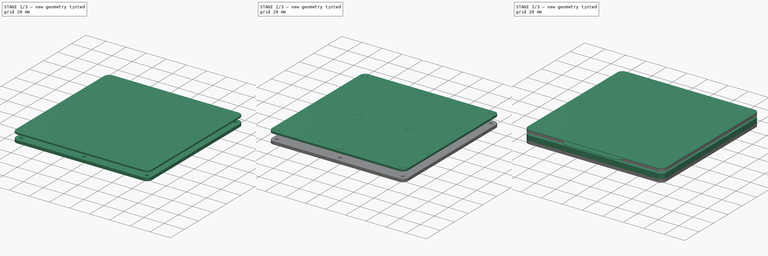
[diagram: build sequence overview — one tinted view per stage of 3, left to right]
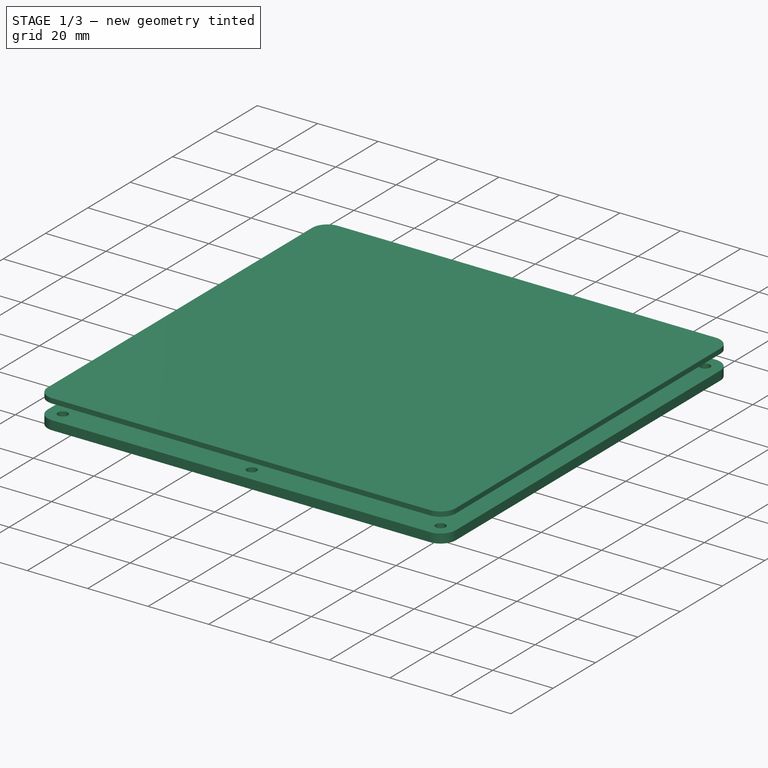
[diagram: stage 1 of 3 — iso view after this stage's code; geometry added in this stage tinted green]
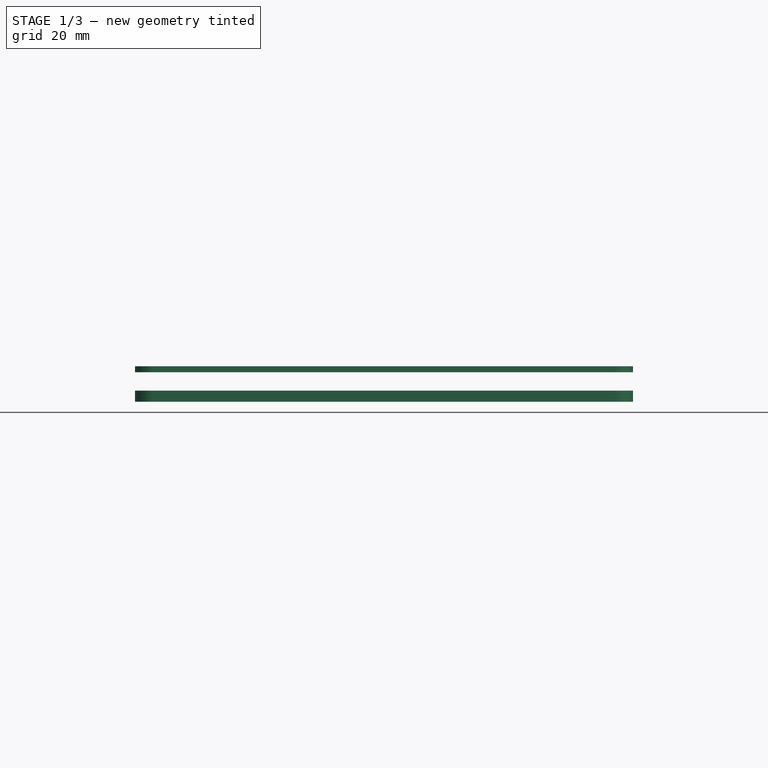
[diagram: stage 1 of 3 — front view after this stage's code; geometry added in this stage tinted green]
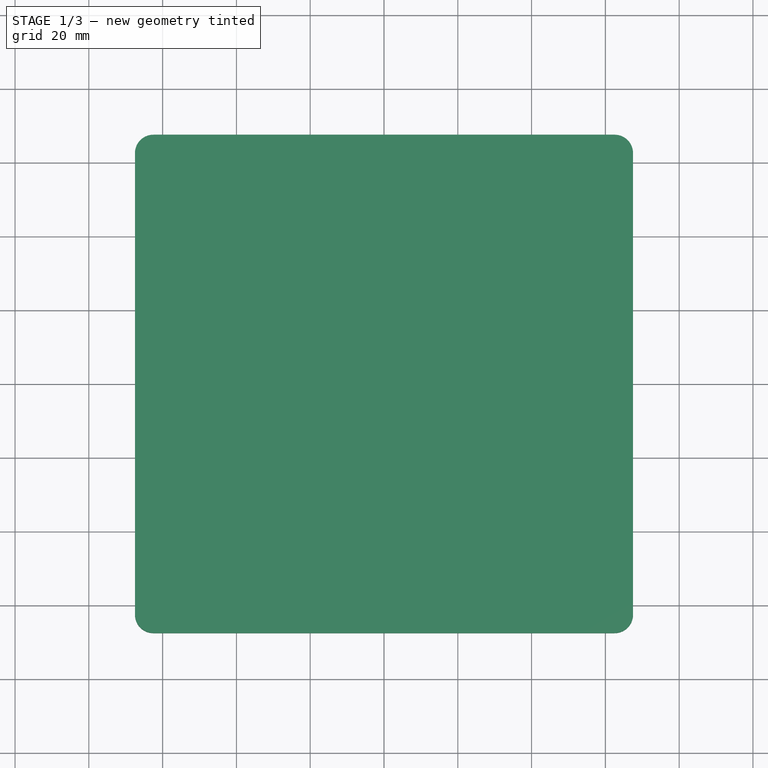
[diagram: stage 1 of 3 — top view after this stage's code; geometry added in this stage tinted green]
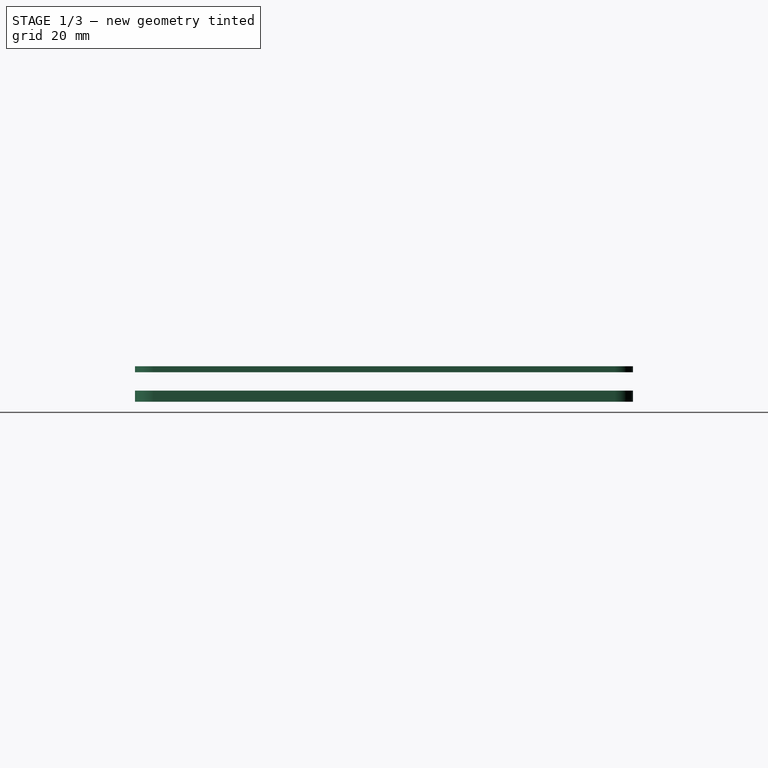
[diagram: stage 1 of 3 — right view after this stage's code; geometry added in this stage tinted green]
FCSTD DOCUMENT  (FreeCAD 0.18.4R)
Label: heat-bed
License: All rights reserved
LicenseURL: http://en.wikipedia.org/wiki/All_rights_reserved
objects: Sketcher::SketchObject×8, PartDesign::Pad×6, PartDesign::Body×6, PartDesign::ShapeBinder×4, PartDesign::Line×2, App::Part×2, PartDesign::Hole×2
note: 36 computed .brp shape members not serialized (recipe doc carries the construction recipe); baked Part::Feature solids carry a one-line shape summary decoded from their .brp

FEATURE [Sketcher::SketchObject] Sketch
  MapMode = 5
  Support = -> [XY_Plane001]
  sketch-geometry (14):
    g0: LineSegment StartX=-62.5 StartY=67.5 StartZ=0 EndX=62.5 EndY=67.5 EndZ=0
    g1: LineSegment StartX=67.5 StartY=62.5 StartZ=0 EndX=67.5 EndY=-62.5 EndZ=0
    g2: LineSegment StartX=62.5 StartY=-67.5 StartZ=0 EndX=-62.5 EndY=-67.5 EndZ=0
    g3: LineSegment StartX=-67.5 StartY=-62.5 StartZ=0 EndX=-67.5 EndY=62.5 EndZ=0
    g4: ArcOfCircle CenterX=-62.5 CenterY=62.5 CenterZ=0 NormalX=0 NormalY=0 NormalZ=1 AngleXU=0 Radius=5 StartAngle=1.5708 EndAngle=3.14159
    g5: ArcOfCircle CenterX=62.5 CenterY=62.5 CenterZ=0 NormalX=0 NormalY=0 NormalZ=1 AngleXU=0 Radius=5 StartAngle=2e-16 EndAngle=1.5708
    g6: ArcOfCircle CenterX=62.5 CenterY=-62.5 CenterZ=0 NormalX=0 NormalY=0 NormalZ=1 AngleXU=0 Radius=5 StartAngle=4.71239 EndAngle=6.28319
    g7: ArcOfCircle CenterX=-62.5 CenterY=-62.5 CenterZ=0 NormalX=0 NormalY=0 NormalZ=1 AngleXU=0 Radius=5 StartAngle=3.14159 EndAngle=4.71239
    g8: LineSegment [constr] StartX=-67.5 StartY=67.5 StartZ=0 EndX=67.5 EndY=67.5 EndZ=0
    g9: LineSegment [constr] StartX=67.5 StartY=67.5 StartZ=0 EndX=67.5 EndY=-67.5 EndZ=0
    g10: LineSegment [constr] StartX=67.5 StartY=-67.5 StartZ=0 EndX=-67.5 EndY=-67.5 EndZ=0
    g11: LineSegment [constr] StartX=-67.5 StartY=-67.5 StartZ=0 EndX=-67.5 EndY=67.5 EndZ=0
    g12: GeomPoint X=62.5 Y=0 Z=0
    g13: GeomPoint X=67.5 Y=0 Z=0
  constraints (35):
    c: Horizontal(g0)
    c: Horizontal(g2)
    c: Vertical(g1)
    c: Vertical(g3)
    c: Equal(g0,g3)
    c: Tangent(g3,g4) = 1.5708
    c: Tangent(g0,g4) = 1.5708
    c: Tangent(g0,g5) = 1.5708
    c: Tangent(g1,g5) = 1.5708
    c: Tangent(g1,g6) = 1.5708
    c: Tangent(g2,g6) = 1.5708
    c: Tangent(g2,g7) = 1.5708
    c: Tangent(g3,g7) = 1.5708
    c: Coincident(g8,g9)
    c: Coincident(g9,g10)
    c: Coincident(g10,g11)
    c: Coincident(g11,g8)
    c: Horizontal(g8)
    c: Horizontal(g10)
    c: Vertical(g9)
    c: Vertical(g11)
    c: Symmetric(g8,g9,g-1)
    c: PointOnObject(g3,g11)
    c: PointOnObject(g1,g9)
    c: PointOnObject(g0,g8)
    c: PointOnObject(g2,g10)
    c: Equal(g4,g5)
    c: Equal(g5,g6)
    c: Equal(g6,g7)
    c: Radius(g4) = 5
    c: DistanceY(g11,g11) = 135
    c: PointOnObject(g12,g-1)
    c: PointOnObject(g13,g-1)
    c: PointOnObject(g13,g1)
    c: DistanceX(g12,g13) = 5
FEATURE [PartDesign::Pad] Pad
  Length = 3
  Length2 = 100
  Profile = -> Sketch
  Type = 0
FEATURE [PartDesign::Body] Body001  label="Insulation"
  Group = -> [Sketch001,Pad001]
  Origin = -> Origin002
  Tip = -> Pad001
FEATURE [Sketcher::SketchObject] Sketch002
  MapMode = 5
  Placement = pos=(0,0,8) rot=(0,0,1;0rad)
  sketch-geometry (8):
    g0: LineSegment StartX=-62.5 StartY=67.5 StartZ=0 EndX=62.5 EndY=67.5 EndZ=0
    g1: LineSegment StartX=67.5 StartY=62.5 StartZ=0 EndX=67.5 EndY=-62.5 EndZ=0
    g2: LineSegment StartX=62.5 StartY=-67.5 StartZ=0 EndX=-62.5 EndY=-67.5 EndZ=0
    g3: LineSegment StartX=-67.5 StartY=-62.5 StartZ=0 EndX=-67.5 EndY=62.5 EndZ=0
    g4: ArcOfCircle CenterX=-62.5 CenterY=62.5 CenterZ=0 NormalX=0 NormalY=0 NormalZ=1 AngleXU=0 Radius=5 StartAngle=1.5708 EndAngle=3.14159
    g5: ArcOfCircle CenterX=62.5 CenterY=62.5 CenterZ=0 NormalX=0 NormalY=0 NormalZ=1 AngleXU=0 Radius=5 StartAngle=6.2e-15 EndAngle=1.5708
    g6: ArcOfCircle CenterX=62.5 CenterY=-62.5 CenterZ=0 NormalX=0 NormalY=0 NormalZ=1 AngleXU=0 Radius=5 StartAngle=4.71239 EndAngle=6.28319
    g7: ArcOfCircle CenterX=-62.5 CenterY=-62.5 CenterZ=0 NormalX=0 NormalY=0 NormalZ=1 AngleXU=0 Radius=5 StartAngle=3.14159 EndAngle=4.71239
  constraints (15):
    c: Horizontal(g0)
    c: Horizontal(g2)
    c: Vertical(g1)
    c: Vertical(g3)
    c: Tangent(g3,g4) = 1.5708
    c: Tangent(g0,g4) = 1.5708
    c: Tangent(g0,g5) = 1.5708
    c: Tangent(g1,g5) = 1.5708
    c: Tangent(g1,g6) = 1.5708
    c: Tangent(g2,g6) = 1.5708
    c: Tangent(g2,g7) = 1.5708
    c: Tangent(g3,g7) = 1.5708
    c: Equal(g7,g4)
    c: Equal(g4,g5)
    c: Equal(g5,g6)
FEATURE [PartDesign::Pad] Pad002
  Length = 1.6
  Length2 = 100
  Placement = pos=(0,0,8) rot=(0,0,1;0rad)
  Profile = -> Sketch002
  Type = 0
FEATURE [PartDesign::Line] DatumLine001
  AttacherType = Attacher::AttachEngineLine
  MapMode = 19
  Placement = pos=(-62.5,62.5,9.6) rot=(0,0,1;1.5708rad)
  Support = -> [ReferencePad002001]
FEATURE [PartDesign::Body] Body003  label="top-metal-bed"
  Group = -> [DatumLine001,ReferencePad002,ReferencePad002001,DatumLine,Sketch004,Pad003,Sketch007,Hole]
  Origin = -> Origin004
  Tip = -> Hole
FEATURE [Sketcher::SketchObject] Sketch008
  MapMode = 5
  Placement = pos=(0,0,3) rot=(0,0,1;0rad)
  Support = -> [Pad]
  sketch-geometry (22):
    g0: LineSegment StartX=-62.5 StartY=67.5 StartZ=0 EndX=62.5 EndY=67.5 EndZ=0
    g1: LineSegment StartX=67.5 StartY=62.5 StartZ=0 EndX=67.5 EndY=-62.5 EndZ=0
    g2: LineSegment StartX=62.5 StartY=-67.5 StartZ=0 EndX=-62.5 EndY=-67.5 EndZ=0
    g3: LineSegment StartX=-67.5 StartY=-62.5 StartZ=0 EndX=-67.5 EndY=62.5 EndZ=0
    g4: ArcOfCircle CenterX=-62.5 CenterY=62.5 CenterZ=0 NormalX=0 NormalY=0 NormalZ=1 AngleXU=0 Radius=5 StartAngle=1.5708 EndAngle=3.14159
    g5: ArcOfCircle CenterX=62.5 CenterY=62.5 CenterZ=0 NormalX=0 NormalY=0 NormalZ=1 AngleXU=0 Radius=5 StartAngle=2e-16 EndAngle=1.5708
    g6: ArcOfCircle CenterX=62.5 CenterY=-62.5 CenterZ=0 NormalX=0 NormalY=0 NormalZ=1 AngleXU=0 Radius=5 StartAngle=4.71239 EndAngle=6.28319
    g7: ArcOfCircle CenterX=-62.5 CenterY=-62.5 CenterZ=0 NormalX=0 NormalY=0 NormalZ=1 AngleXU=0 Radius=5 StartAngle=3.14159 EndAngle=4.71239
    g8: Circle CenterX=-62.5 CenterY=62.5 CenterZ=0 NormalX=0 NormalY=0 NormalZ=1 AngleXU=0 Radius=1.5
    g9: Circle CenterX=0 CenterY=62.5 CenterZ=0 NormalX=0 NormalY=0 NormalZ=1 AngleXU=0 Radius=1.5
    g10: Circle CenterX=62.5 CenterY=62.5 CenterZ=0 NormalX=0 NormalY=0 NormalZ=1 AngleXU=0 Radius=1.5
    g11: Circle CenterX=-25 CenterY=0 CenterZ=0 NormalX=0 NormalY=0 NormalZ=1 AngleXU=0 Radius=1.5
    g12: Circle CenterX=25 CenterY=0 CenterZ=0 NormalX=0 NormalY=0 NormalZ=1 AngleXU=0 Radius=1.5
    g13: Circle CenterX=-62.5 CenterY=-62.5 CenterZ=0 NormalX=0 NormalY=0 NormalZ=1 AngleXU=0 Radius=1.5
    g14: Circle CenterX=0 CenterY=-62.5 CenterZ=0 NormalX=0 NormalY=0 NormalZ=1 AngleXU=0 Radius=1.5
    g15: Circle CenterX=62.5 CenterY=-62.5 CenterZ=0 NormalX=0 NormalY=0 NormalZ=1 AngleXU=0 Radius=1.5
    g16: LineSegment [constr] StartX=-62.5 StartY=62.5 StartZ=0 EndX=62.5 EndY=62.5 EndZ=0
    g17: LineSegment [constr] StartX=62.5 StartY=62.5 StartZ=0 EndX=62.5 EndY=-62.5 EndZ=0
    g18: LineSegment [constr] StartX=62.5 StartY=-62.5 StartZ=0 EndX=-62.5 EndY=-62.5 EndZ=0
    g19: LineSegment [constr] StartX=-62.5 StartY=-62.5 StartZ=0 EndX=-62.5 EndY=62.5 EndZ=0
    g20: GeomPoint X=62.5 Y=0 Z=0
    g21: GeomPoint X=67.5 Y=0 Z=0
  constraints (51):
    c: Horizontal(g0)
    c: Horizontal(g2)
    c: Vertical(g1)
    c: Vertical(g3)
    c: Equal(g0,g3)
    c: Tangent(g3,g4) = 1.5708
    c: Tangent(g0,g4) = 1.5708
    c: Tangent(g0,g5) = 1.5708
    c: Tangent(g1,g5) = 1.5708
    c: Tangent(g1,g6) = 1.5708
    c: Tangent(g2,g6) = 1.5708
    c: Tangent(g2,g7) = 1.5708
    c: Tangent(g3,g7) = 1.5708
    c: Equal(g4,g5)
    c: Equal(g5,g6)
    c: Equal(g6,g7)
    c: Radius(g4) = 5
    c: Coincident(g16,g17)
    c: Coincident(g17,g18)
    c: Coincident(g18,g19)
    c: Coincident(g19,g16)
    c: Horizontal(g16)
    c: Horizontal(g18)
    c: Vertical(g17)
    c: Vertical(g19)
    c: Symmetric(g16,g17,g-1)
    c: Equal(g19,g16)
    c: Coincident(g8,g16)
    c: Coincident(g16,g10)
    c: Coincident(g15,g17)
    c: Coincident(g13,g18)
    c: PointOnObject(g9,g16)
    c: PointOnObject(g9,g-2)
    c: PointOnObject(g14,g18)
    c: PointOnObject(g14,g-2)
    c: PointOnObject(g11,g-1)
    c: Symmetric(g11,g12,g-2)
    c: DistanceX(g11,g12) = 50
    c: Equal(g8,g9)
    c: Equal(g9,g10)
    c: Equal(g10,g15)
    c: Equal(g15,g14)
    c: Equal(g14,g13)
    c: Equal(g13,g11)
    c: Equal(g11,g12)
    c: Diameter(g15) = 3
    c: PointOnObject(g20,g-1)
    c: PointOnObject(g20,g17)
    c: PointOnObject(g21,g-1)
    c: PointOnObject(g21,g1)
    c: DistanceX(g20,g21) = 5
FEATURE [PartDesign::Hole] Hole001
  BaseFeature = -> Pad
  Depth = 25
  DepthType = 0
  Diameter = 3.3
  DrillPoint = 1
  DrillPointAngle = 118
  HoleCutCountersinkAngle = 90
  HoleCutDepth = 0
  HoleCutDiameter = 3
  HoleCutType = 0
  ModelActualThread = false
  Profile = -> Sketch008
  Tapered = false
  TaperedAngle = 90
  ThreadAngle = 0
  ThreadClass = 0
  ThreadCutOffInner = 0
  ThreadCutOffOuter = 0
  ThreadDirection = 0
  ThreadFit = 0
  ThreadPitch = 0
  ThreadSize = 3
  ThreadType = 1
  Threaded = false
FEATURE [PartDesign::Body] Body  label="base-plane"
  Group = -> [Sketch,Pad,Sketch008,Hole001]
  Origin = -> Origin001
  Tip = -> Hole001
FEATURE [App::Part] Part  label="heat-bed"
  Group = -> [Body,Body001,Body002,Body003]
  Origin = -> Origin
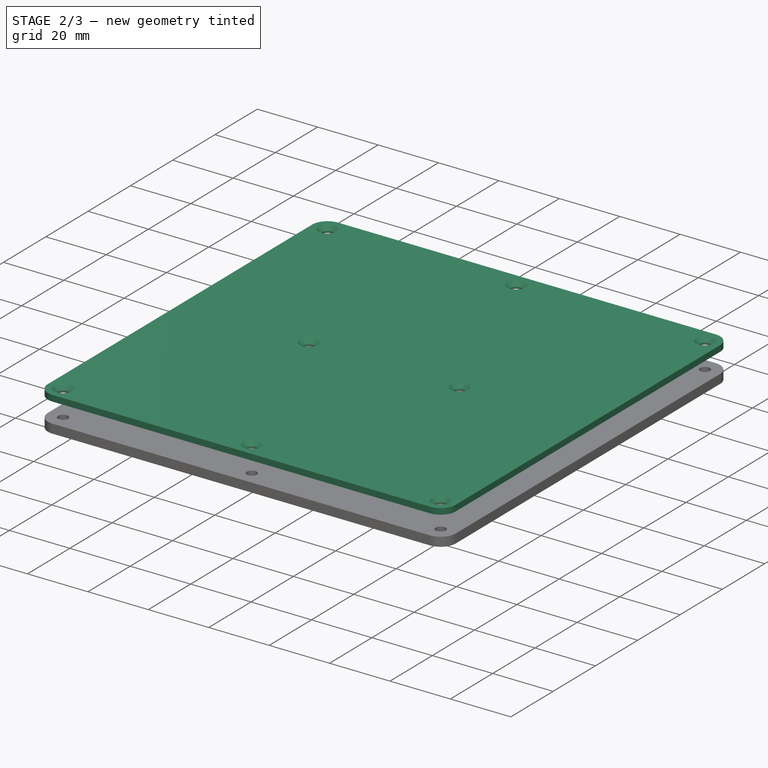
[diagram: stage 2 of 3 — iso view after this stage's code; geometry added in this stage tinted green]
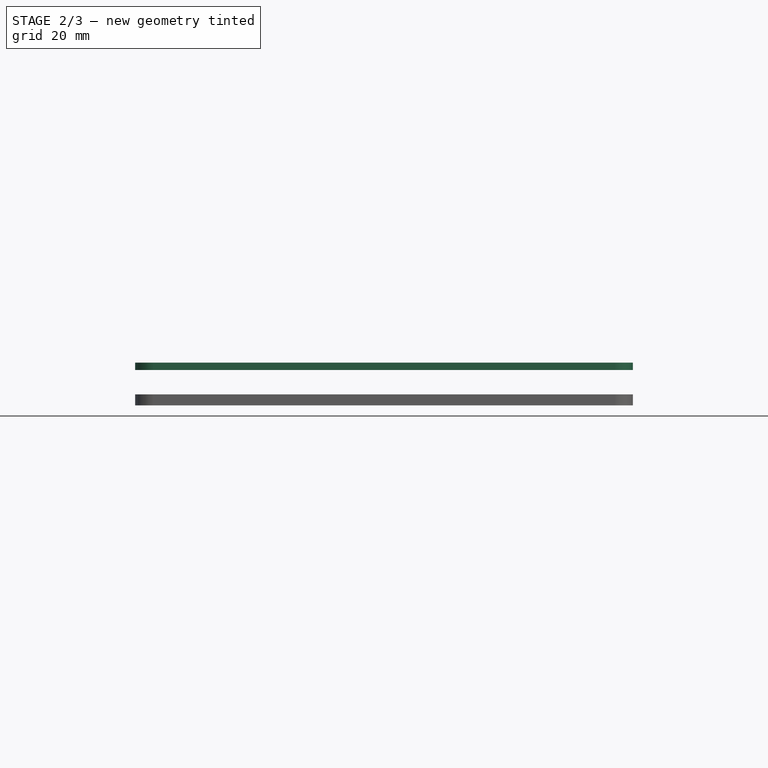
[diagram: stage 2 of 3 — front view after this stage's code; geometry added in this stage tinted green]
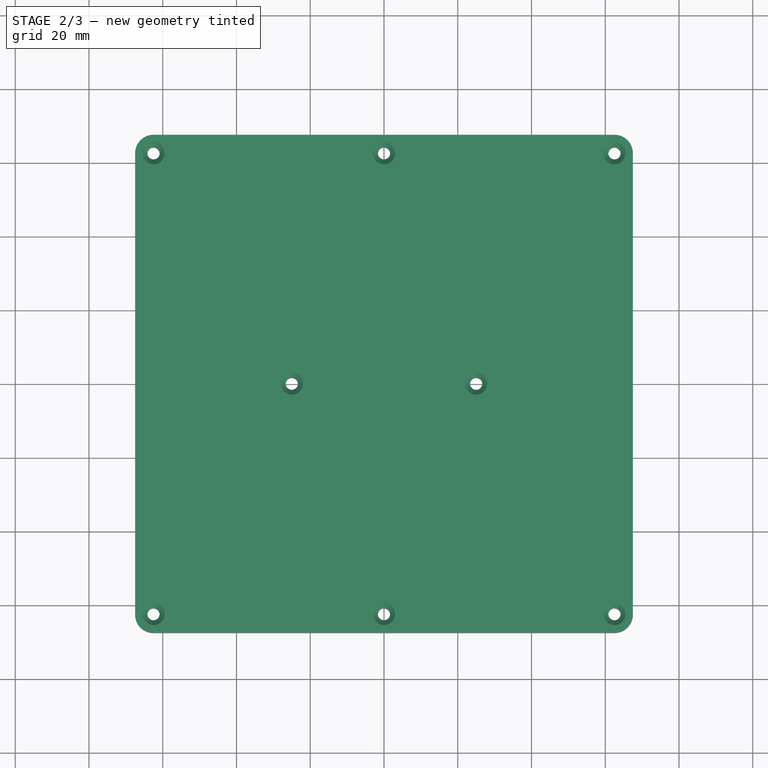
[diagram: stage 2 of 3 — top view after this stage's code; geometry added in this stage tinted green]
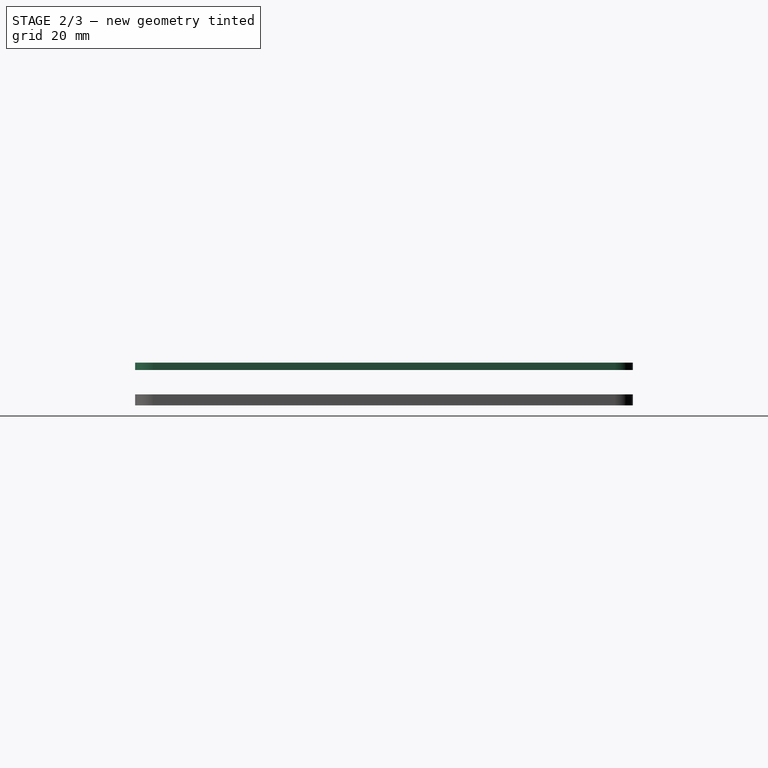
[diagram: stage 2 of 3 — right view after this stage's code; geometry added in this stage tinted green]
FEATURE [PartDesign::Body] Body002  label="heatbed-pcb"
  Group = -> [Sketch002,Pad002]
  Origin = -> Origin003
  Tip = -> Pad002
FEATURE [PartDesign::ShapeBinder] ReferencePad002
  Placement = pos=(0,0,9.6) rot=(0,0,1;0rad)
  Support = -> [Pad002]
  TraceSupport = false
FEATURE [PartDesign::Line] DatumLine
  AttacherType = Attacher::AttachEngineLine
  MapMode = 19
  Placement = pos=(62.5,-62.5,9.6) rot=(0,0,1;4.71239rad)
  Support = -> [ReferencePad002]
FEATURE [PartDesign::ShapeBinder] ReferencePad002001
  Placement = pos=(0,0,9.6) rot=(0,0,1;0rad)
  Support = -> [Pad002]
  TraceSupport = false
FEATURE [Sketcher::SketchObject] Sketch004
  ExternalGeometry = -> [DatumLine,ReferencePad002,ReferencePad002001]
  MapMode = 5
  Placement = pos=(0,0,9.6) rot=(0,0,1;0rad)
  sketch-geometry (8):
    g0: LineSegment StartX=-62.5 StartY=67.5 StartZ=0 EndX=62.5 EndY=67.5 EndZ=0
    g1: LineSegment StartX=67.5 StartY=62.5 StartZ=0 EndX=67.5 EndY=-62.5 EndZ=0
    g2: LineSegment StartX=62.5 StartY=-67.5 StartZ=0 EndX=-62.5 EndY=-67.5 EndZ=0
    g3: LineSegment StartX=-67.5 StartY=-62.5 StartZ=0 EndX=-67.5 EndY=62.5 EndZ=0
    g4: ArcOfCircle CenterX=-62.5 CenterY=62.5 CenterZ=0 NormalX=0 NormalY=0 NormalZ=1 AngleXU=0 Radius=5 StartAngle=1.5708 EndAngle=3.14159
    g5: ArcOfCircle CenterX=62.5 CenterY=62.5 CenterZ=0 NormalX=0 NormalY=0 NormalZ=1 AngleXU=0 Radius=5 StartAngle=-9e-16 EndAngle=1.5708
    g6: ArcOfCircle CenterX=62.5 CenterY=-62.5 CenterZ=0 NormalX=0 NormalY=0 NormalZ=1 AngleXU=0 Radius=5 StartAngle=4.71239 EndAngle=6.28319
    g7: ArcOfCircle CenterX=-62.5 CenterY=-62.5 CenterZ=0 NormalX=0 NormalY=0 NormalZ=1 AngleXU=0 Radius=5 StartAngle=3.14159 EndAngle=4.71239
  constraints (18):
    c: Horizontal(g0)
    c: Horizontal(g2)
    c: Vertical(g1)
    c: Vertical(g3)
    c: Tangent(g3,g4) = 1.5708
    c: Tangent(g0,g4) = 1.5708
    c: Tangent(g0,g5) = 1.5708
    c: Tangent(g1,g5) = 1.5708
    c: Tangent(g1,g6) = 1.5708
    c: Tangent(g2,g6) = 1.5708
    c: Tangent(g3,g7) = 1.5708
    c: Tangent(g2,g7) = 1.5708
    c: Equal(g6,g7)
    c: Equal(g7,g4)
    c: Equal(g4,g5)
    c: Coincident(g6,g-3)
    c: Equal(g6,g-4)
    c: Coincident(g4,g-5)
FEATURE [PartDesign::Pad] Pad003
  Length = 2
  Length2 = 100
  Placement = pos=(0,0,9.6) rot=(0,0,1;0rad)
  Profile = -> Sketch004
  Type = 0
FEATURE [PartDesign::Body] Body005  label="PEI"
  Group = -> [ReferencePad004001,Sketch006,Pad005]
  Origin = -> Origin006
  Tip = -> Pad005
FEATURE [App::Part] Part001  label="removeable-part"
  Group = -> [Body005,Body004]
  Origin = -> Origin007
FEATURE [Sketcher::SketchObject] Sketch007
  ExternalGeometry = -> [Pad003]
  MapMode = 5
  Placement = pos=(0,0,11.6) rot=(0,0,1;0rad)
  Support = -> [Pad003]
  sketch-geometry (14):
    g0: Circle CenterX=-62.5 CenterY=62.5 CenterZ=0 NormalX=0 NormalY=0 NormalZ=1 AngleXU=0 Radius=3
    g1: Circle CenterX=62.5 CenterY=62.5 CenterZ=0 NormalX=0 NormalY=0 NormalZ=1 AngleXU=0 Radius=3
    g2: Circle CenterX=62.5 CenterY=-62.5 CenterZ=0 NormalX=0 NormalY=0 NormalZ=1 AngleXU=0 Radius=3
    g3: Circle CenterX=-62.5 CenterY=-62.5 CenterZ=0 NormalX=0 NormalY=0 NormalZ=1 AngleXU=0 Radius=3
    g4: Circle CenterX=-25 CenterY=0 CenterZ=0 NormalX=0 NormalY=0 NormalZ=1 AngleXU=0 Radius=3
    g5: Circle CenterX=25 CenterY=0 CenterZ=0 NormalX=0 NormalY=0 NormalZ=1 AngleXU=0 Radius=3
    g6: Circle CenterX=0 CenterY=62.5 CenterZ=0 NormalX=0 NormalY=0 NormalZ=1 AngleXU=0 Radius=3
    g7: Circle CenterX=0 CenterY=-62.5 CenterZ=0 NormalX=0 NormalY=0 NormalZ=1 AngleXU=0 Radius=3
    g8: LineSegment [constr] StartX=-62.5 StartY=62.5 StartZ=0 EndX=62.5 EndY=62.5 EndZ=0
    g9: LineSegment [constr] StartX=62.5 StartY=62.5 StartZ=0 EndX=62.5 EndY=-62.5 EndZ=0
    g10: LineSegment [constr] StartX=62.5 StartY=-62.5 StartZ=0 EndX=-62.5 EndY=-62.5 EndZ=0
    g11: LineSegment [constr] StartX=-62.5 StartY=-62.5 StartZ=0 EndX=-62.5 EndY=62.5 EndZ=0
    g12: GeomPoint X=67.5 Y=0 Z=0
    g13: GeomPoint X=62.5 Y=0 Z=0
  constraints (34):
    c: Equal(g0,g1)
    c: Equal(g1,g5)
    c: Equal(g5,g4)
    c: Equal(g4,g2)
    c: Equal(g2,g3)
    c: Equal(g7,g6)
    c: Equal(g6,g1)
    c: Coincident(g8,g9)
    c: Coincident(g9,g10)
    c: Coincident(g10,g11)
    c: Coincident(g11,g8)
    c: Horizontal(g8)
    c: Horizontal(g10)
    c: Vertical(g9)
    c: Vertical(g11)
    c: Symmetric(g8,g9,g-1)
    c: Equal(g11,g8)
    c: PointOnObject(g12,g-3)
    c: PointOnObject(g12,g-1)
    c: PointOnObject(g13,g-1)
    c: PointOnObject(g13,g9)
    c: DistanceX(g13,g12) = 5
    c: Coincident(g2,g9)
    c: Coincident(g3,g10)
    c: PointOnObject(g7,g-2)
    c: PointOnObject(g7,g10)
    c: Coincident(g0,g8)
    c: Coincident(g1,g8)
    c: PointOnObject(g6,g-2)
    c: PointOnObject(g6,g8)
    c: PointOnObject(g4,g-1)
    c: Symmetric(g5,g4,g-2)
    c: DistanceX(g4,g5) = 50
    c: Radius(g2) = 3
FEATURE [PartDesign::Hole] Hole
  BaseFeature = -> Pad003
  Depth = 25
  DepthType = 1
  Diameter = 3.3
  DrillPoint = 1
  DrillPointAngle = 118
  HoleCutCountersinkAngle = 90
  HoleCutDepth = 0
  HoleCutDiameter = 6
  HoleCutType = 2
  ModelActualThread = false
  Placement = pos=(0,0,9.6) rot=(0,0,1;0rad)
  Profile = -> Sketch007
  Tapered = false
  TaperedAngle = 90
  ThreadAngle = 0
  ThreadClass = 0
  ThreadCutOffInner = 0
  ThreadCutOffOuter = 0
  ThreadDirection = 0
  ThreadFit = 0
  ThreadPitch = 0
  ThreadSize = 3
  ThreadType = 1
  Threaded = false
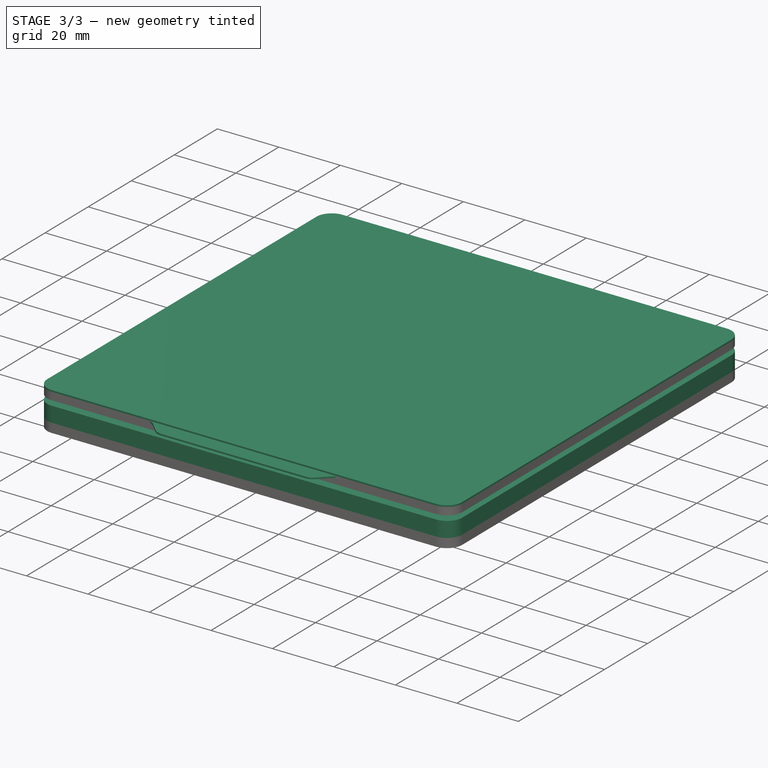
[diagram: stage 3 of 3 — iso view after this stage's code; geometry added in this stage tinted green]
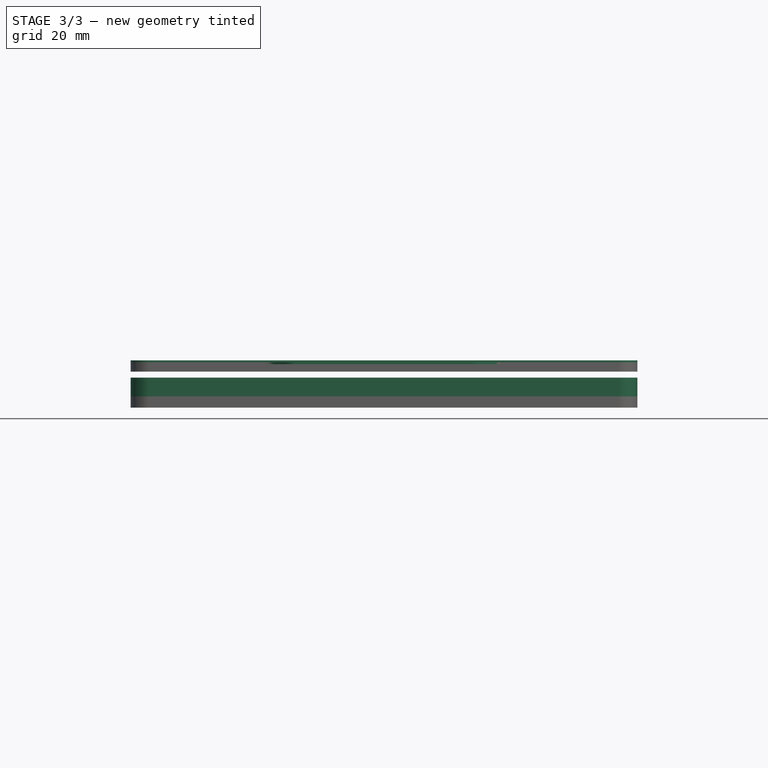
[diagram: stage 3 of 3 — front view after this stage's code; geometry added in this stage tinted green]
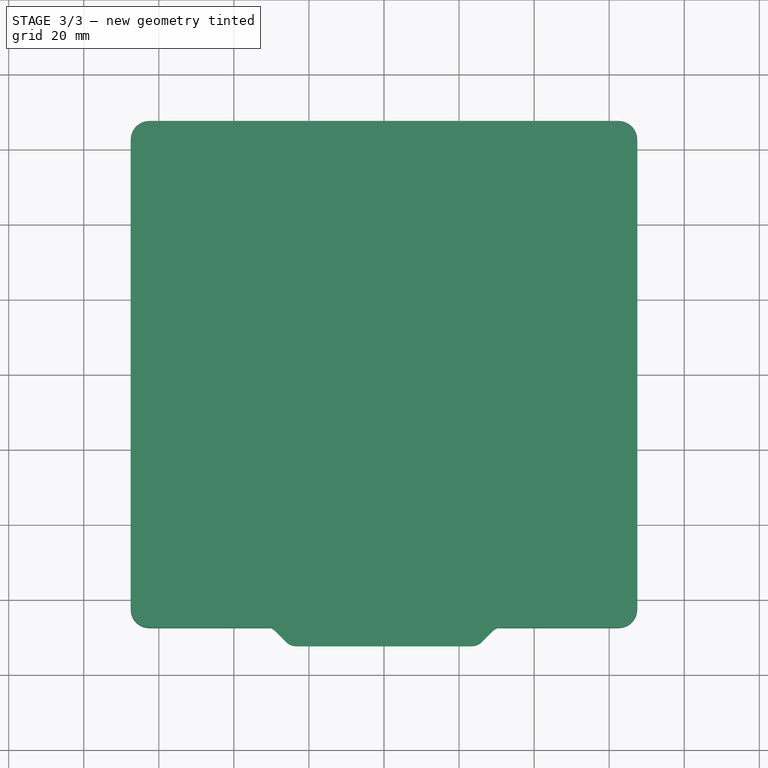
[diagram: stage 3 of 3 — top view after this stage's code; geometry added in this stage tinted green]
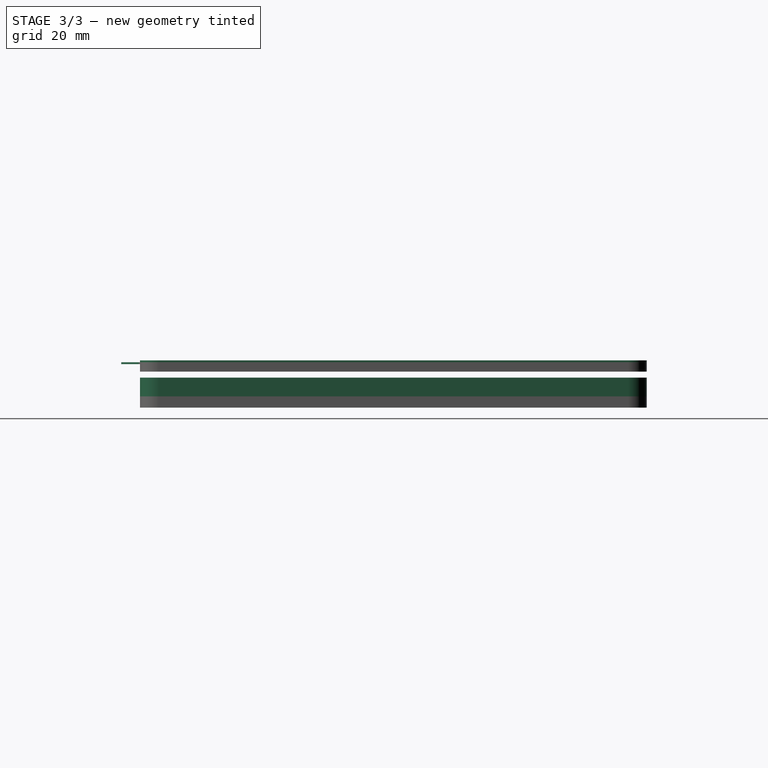
[diagram: stage 3 of 3 — right view after this stage's code; geometry added in this stage tinted green]
FEATURE [Sketcher::SketchObject] Sketch001
  MapMode = 5
  Placement = pos=(0,0,3) rot=(0,0,1;0rad)
  sketch-geometry (8):
    g0: LineSegment StartX=-62.5 StartY=67.5 StartZ=0 EndX=62.5 EndY=67.5 EndZ=0
    g1: LineSegment StartX=67.5 StartY=62.5 StartZ=0 EndX=67.5 EndY=-62.5 EndZ=0
    g2: LineSegment StartX=62.5 StartY=-67.5 StartZ=0 EndX=-62.5 EndY=-67.5 EndZ=0
    g3: LineSegment StartX=-67.5 StartY=-62.5 StartZ=0 EndX=-67.5 EndY=62.5 EndZ=0
    g4: ArcOfCircle CenterX=-62.5 CenterY=62.5 CenterZ=0 NormalX=0 NormalY=0 NormalZ=1 AngleXU=0 Radius=5 StartAngle=1.5708 EndAngle=3.14159
    g5: ArcOfCircle CenterX=62.5 CenterY=62.5 CenterZ=0 NormalX=0 NormalY=0 NormalZ=1 AngleXU=0 Radius=5 StartAngle=-9e-16 EndAngle=1.5708
    g6: ArcOfCircle CenterX=62.5 CenterY=-62.5 CenterZ=0 NormalX=0 NormalY=0 NormalZ=1 AngleXU=0 Radius=5 StartAngle=4.71239 EndAngle=6.28319
    g7: ArcOfCircle CenterX=-62.5 CenterY=-62.5 CenterZ=0 NormalX=0 NormalY=0 NormalZ=1 AngleXU=0 Radius=5 StartAngle=3.14159 EndAngle=4.71239
  constraints (15):
    c: Horizontal(g0)
    c: Horizontal(g2)
    c: Vertical(g1)
    c: Vertical(g3)
    c: Tangent(g3,g4) = 1.5708
    c: Tangent(g0,g4) = 1.5708
    c: Tangent(g0,g5) = 1.5708
    c: Tangent(g1,g5) = 1.5708
    c: Tangent(g1,g6) = 1.5708
    c: Tangent(g2,g6) = 1.5708
    c: Tangent(g2,g7) = 1.5708
    c: Tangent(g3,g7) = 1.5708
    c: Equal(g6,g7)
    c: Equal(g7,g4)
    c: Equal(g4,g5)
FEATURE [PartDesign::Pad] Pad001
  Length = 5
  Length2 = 100
  Placement = pos=(0,0,3) rot=(0,0,1;0rad)
  Profile = -> Sketch001
  Type = 0
FEATURE [PartDesign::ShapeBinder] ReferencePad003001
  Placement = pos=(0,0,2) rot=(0,0,1;0rad)
  Support = -> [Pad003]
  TraceSupport = false
FEATURE [Sketcher::SketchObject] Sketch005
  ExternalGeometry = -> [ReferencePad003001]
  MapMode = 5
  Placement = pos=(0,0,11.6) rot=(0,0,1;0rad)
  Support = -> [ReferencePad003001]
  sketch-geometry (18):
    g0: LineSegment StartX=-62.5 StartY=67.5 StartZ=0 EndX=62.5 EndY=67.5 EndZ=0
    g1: LineSegment StartX=67.5 StartY=62.5 StartZ=0 EndX=67.5 EndY=-62.5 EndZ=0
    g2: LineSegment StartX=-67.5 StartY=-62.5 StartZ=0 EndX=-67.5 EndY=62.5 EndZ=0
    g3: ArcOfCircle CenterX=-62.5 CenterY=62.5 CenterZ=0 NormalX=0 NormalY=0 NormalZ=1 AngleXU=0 Radius=5 StartAngle=1.5708 EndAngle=3.14159
    g4: ArcOfCircle CenterX=62.5 CenterY=62.5 CenterZ=0 NormalX=0 NormalY=0 NormalZ=1 AngleXU=0 Radius=5 StartAngle=0 EndAngle=1.5708
    g5: ArcOfCircle CenterX=62.5 CenterY=-62.5 CenterZ=0 NormalX=0 NormalY=0 NormalZ=1 AngleXU=0 Radius=5 StartAngle=4.71239 EndAngle=6.28319
    g6: ArcOfCircle CenterX=-62.5 CenterY=-62.5 CenterZ=0 NormalX=0 NormalY=0 NormalZ=1 AngleXU=0 Radius=5 StartAngle=3.14159 EndAngle=4.71239
    g7: LineSegment StartX=-23.4684 StartY=-72.5 StartZ=0 EndX=23.4684 EndY=-72.5 EndZ=0
    g8: GeomPoint X=0 Y=-72.5 Z=0
    g9: GeomPoint X=0 Y=-67.5 Z=0
    g10: LineSegment StartX=-62.5 StartY=-67.5 StartZ=0 EndX=-31.5335 EndY=-67.5 EndZ=0
    g11: LineSegment StartX=-28.8682 StartY=-68.604 StartZ=0 EndX=-26.0355 EndY=-71.4367 EndZ=0
    g12: LineSegment StartX=62.5 StartY=-67.5 StartZ=0 EndX=31.5335 EndY=-67.5 EndZ=0
    g13: LineSegment StartX=28.8682 StartY=-68.604 StartZ=0 EndX=26.0355 EndY=-71.4367 EndZ=0
    g14: ArcOfCircle CenterX=23.4684 CenterY=-68.8697 CenterZ=0 NormalX=0 NormalY=0 NormalZ=1 AngleXU=0 Radius=3.63035 StartAngle=4.71239 EndAngle=5.49779
    g15: ArcOfCircle CenterX=-23.4684 CenterY=-68.8697 CenterZ=0 NormalX=0 NormalY=0 NormalZ=1 AngleXU=0 Radius=3.63035 StartAngle=3.92699 EndAngle=4.71239
    g16: ArcOfCircle CenterX=-31.5335 CenterY=-71.2693 CenterZ=0 NormalX=0 NormalY=0 NormalZ=1 AngleXU=0 Radius=3.76932 StartAngle=0.785398 EndAngle=1.5708
    g17: ArcOfCircle CenterX=31.5335 CenterY=-71.2693 CenterZ=0 NormalX=0 NormalY=0 NormalZ=1 AngleXU=0 Radius=3.76932 StartAngle=1.5708 EndAngle=2.35619
  constraints (40):
    c: Horizontal(g0)
    c: Vertical(g1)
    c: Vertical(g2)
    c: Tangent(g2,g3) = 1.5708
    c: Tangent(g0,g3) = 1.5708
    c: Tangent(g0,g4) = 1.5708
    c: Tangent(g1,g4) = 1.5708
    c: Tangent(g1,g5) = 1.5708
    c: Tangent(g2,g6) = 1.5708
    c: Equal(g5,g6)
    c: Equal(g6,g3)
    c: Equal(g3,g4)
    c: Equal(g4,g-5)
    c: Coincident(g5,g-5)
    c: Coincident(g3,g-6)
    c: Coincident(g6,g-4)
    c: Coincident(g5,g-5)
    c: Coincident(g5,g-4)
    c: PointOnObject(g9,g-2)
    c: PointOnObject(g8,g-2)
    c: PointOnObject(g8,g7)
    c: PointOnObject(g9,g-4)
    c: DistanceY(g8,g9) = 5
    c: Horizontal(g10)
    c: Horizontal(g12)
    c: Coincident(g5,g12)
    c: Coincident(g6,g10)
    c: Angle(g13,g7) = 2.35619
    c: Tangent(g7,g14) = -1.5708
    c: Tangent(g13,g14) = 1.5708
    c: Tangent(g7,g15) = -1.5708
    c: Tangent(g11,g15) = -1.5708
    c: Equal(g15,g14)
    c: Tangent(g10,g16) = 1.5708
    c: Tangent(g11,g16) = 1.5708
    c: Tangent(g13,g17) = -1.5708
    c: Tangent(g12,g17) = -1.5708
    c: Symmetric(g12,g10,g-2)
    c: Symmetric(g7,g7,g-2)
    c: Equal(g16,g17)
FEATURE [PartDesign::Pad] Pad004
  Length = 0.5
  Length2 = 100
  Placement = pos=(0,0,2) rot=(0,0,1;0rad)
  Profile = -> Sketch005
  Type = 0
FEATURE [PartDesign::Body] Body004  label="removeable-metal-sheet"
  Group = -> [ReferencePad003001,Sketch005,Pad004]
  Origin = -> Origin005
  Tip = -> Pad004
FEATURE [PartDesign::ShapeBinder] ReferencePad004001
  Placement = pos=(0,0,2) rot=(0,0,1;0rad)
  Support = -> [Pad004]
  TraceSupport = false
FEATURE [Sketcher::SketchObject] Sketch006
  ExternalGeometry = -> [ReferencePad004001]
  MapMode = 5
  Placement = pos=(0,0,12.1) rot=(0,0,1;0rad)
  Support = -> [Pad004]
  sketch-geometry (8):
    g0: LineSegment StartX=-62.5 StartY=67.5 StartZ=0 EndX=62.5 EndY=67.5 EndZ=0
    g1: LineSegment StartX=67.5 StartY=62.5 StartZ=0 EndX=67.5 EndY=-62.5 EndZ=0
    g2: LineSegment StartX=62.5 StartY=-67.5 StartZ=0 EndX=-62.5 EndY=-67.5 EndZ=0
    g3: LineSegment StartX=-67.5 StartY=-62.5 StartZ=0 EndX=-67.5 EndY=62.5 EndZ=0
    g4: ArcOfCircle CenterX=-62.5 CenterY=62.5 CenterZ=0 NormalX=0 NormalY=0 NormalZ=1 AngleXU=0 Radius=5 StartAngle=1.5708 EndAngle=3.14159
    g5: ArcOfCircle CenterX=62.5 CenterY=62.5 CenterZ=0 NormalX=0 NormalY=0 NormalZ=1 AngleXU=0 Radius=5 StartAngle=0 EndAngle=1.5708
    g6: ArcOfCircle CenterX=62.5 CenterY=-62.5 CenterZ=0 NormalX=0 NormalY=0 NormalZ=1 AngleXU=0 Radius=5 StartAngle=4.71239 EndAngle=6.28319
    g7: ArcOfCircle CenterX=-62.5 CenterY=-62.5 CenterZ=0 NormalX=0 NormalY=0 NormalZ=1 AngleXU=0 Radius=5 StartAngle=3.14159 EndAngle=4.71239
  constraints (15):
    c: Horizontal(g0)
    c: Horizontal(g2)
    c: Vertical(g1)
    c: Vertical(g3)
    c: Tangent(g3,g4) = 1.5708
    c: Tangent(g0,g4) = 1.5708
    c: Tangent(g0,g5) = 1.5708
    c: Tangent(g1,g5) = 1.5708
    c: Tangent(g1,g6) = 1.5708
    c: Tangent(g2,g6) = 1.5708
    c: Tangent(g2,g7) = 1.5708
    c: Tangent(g3,g7) = 1.5708
    c: Equal(g6,g7)
    c: Equal(g7,g4)
    c: Equal(g4,g5)
FEATURE [PartDesign::Pad] Pad005
  Length = 0.5
  Length2 = 100
  Placement = pos=(0,0,2) rot=(0,0,1;0rad)
  Profile = -> Sketch006
  Type = 0
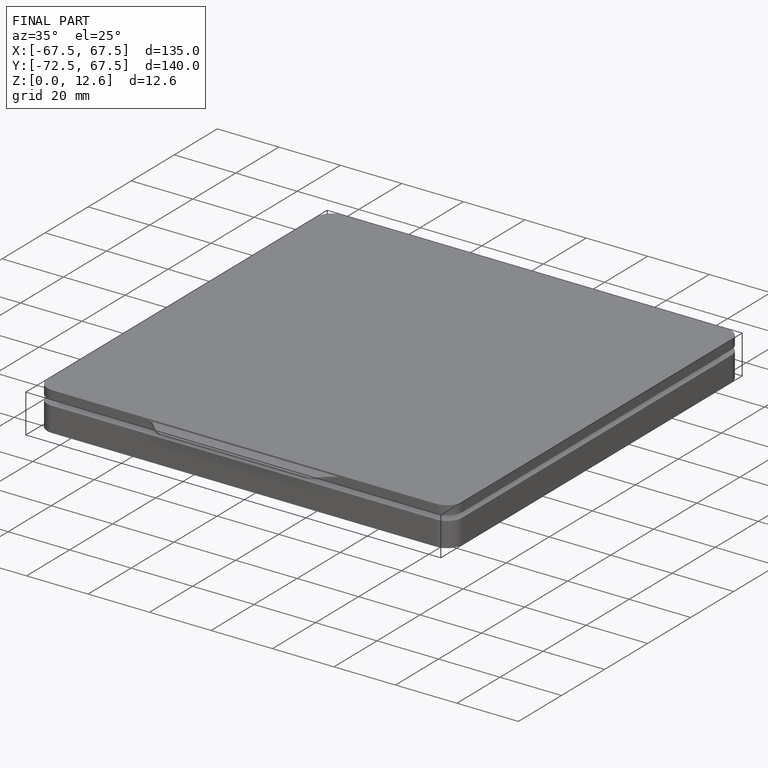
[diagram: finished part — iso view with bounding-box wireframe]
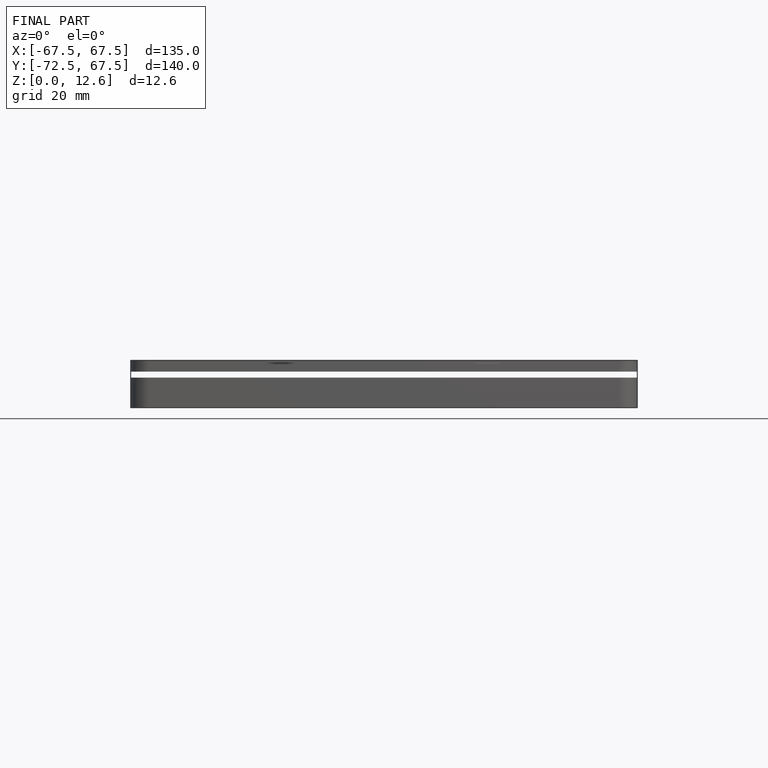
[diagram: finished part — front view with bounding-box wireframe]
